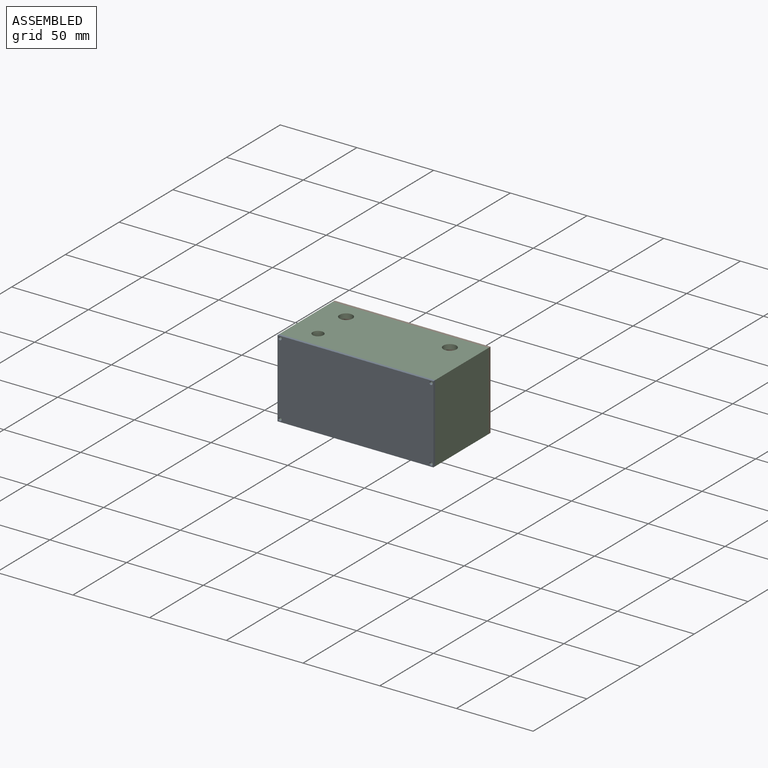
[diagram: assembled view]
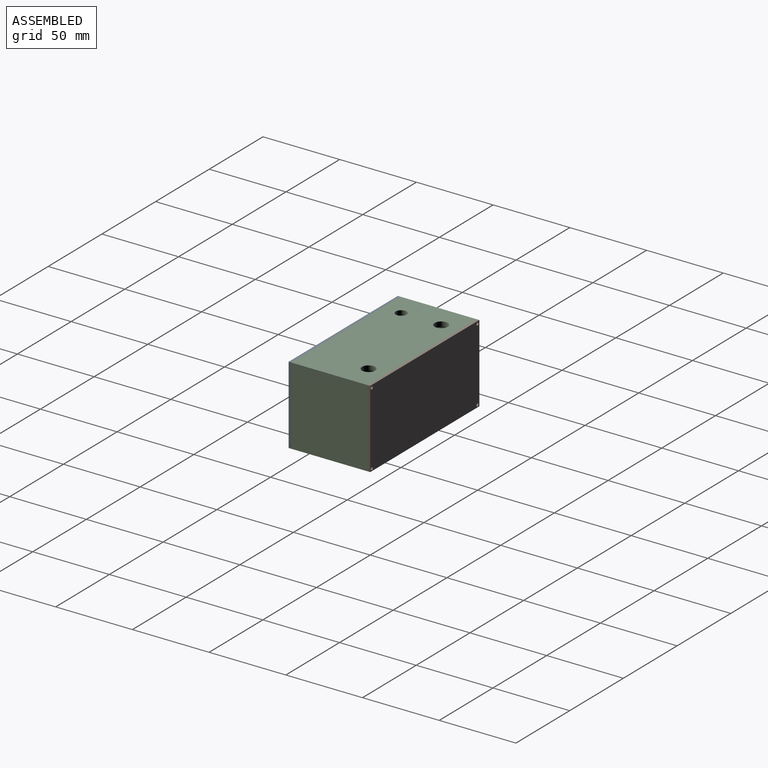
[diagram: assembled view, second angle]
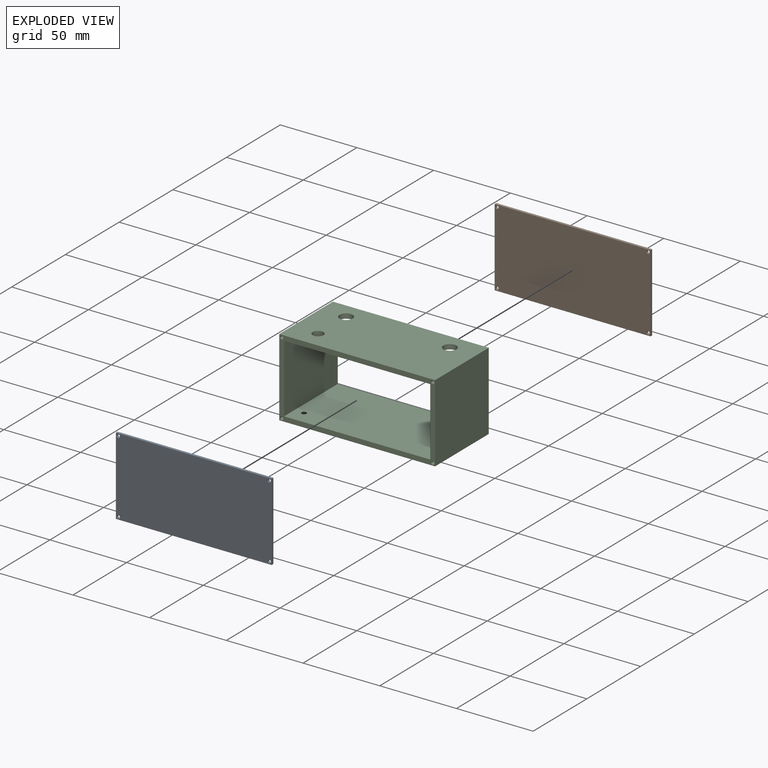
[diagram: exploded view]
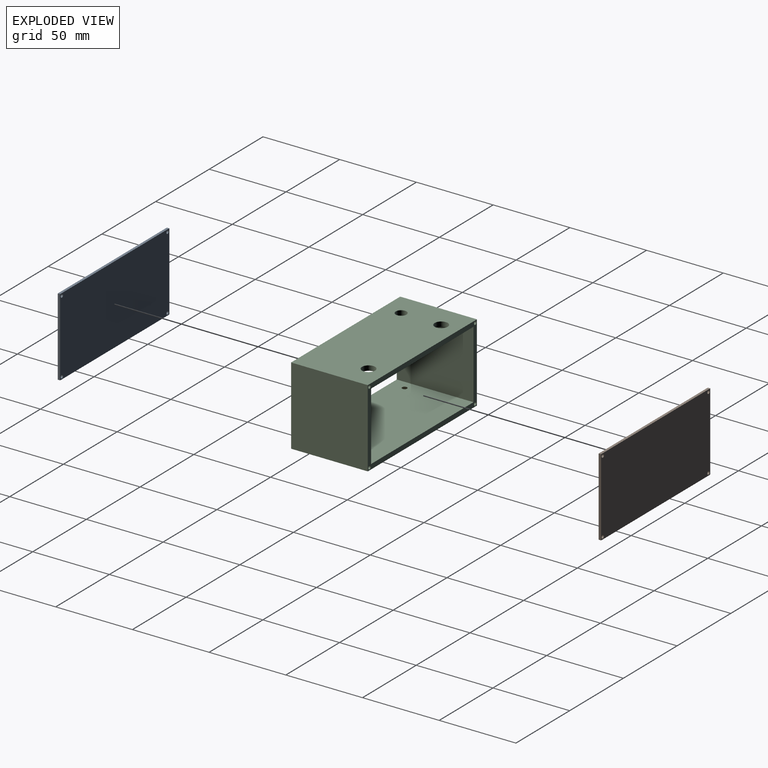
[diagram: exploded view, second angle]
ASSEMBLY  parts=3 mates=2
PART A: 10 faces, bbox 101.6x1.6x50.8 mm
  f0: plane 50.8x1.59mm, normal (-1,0,0), area 80.6mm2, adj f1,f3,f4,f5
  f1: plane 101.6x1.59mm, normal (0,0,-1), area 161.3mm2, adj f0,f2,f4,f5
  f2: plane 50.8x1.59mm, normal (1,0,0), area 80.6mm2, adj f1,f3,f4,f5
  f3: plane 101.6x1.59mm, normal (0,0,1), area 161.3mm2, adj f0,f2,f4,f5
  f4: plane 101.6x50.8mm, normal (0,-1,0), area 5147.3mm2, adj f0,f1,f2,f3,f6,f7,f8,f9
  f5: plane 101.6x50.8mm, normal (0,1,0), area 5147.3mm2, adj f0,f1,f2,f3,f6,f7,f8,f9
  f6: cylinder r=1.05mm len=2.11mm, axis (0,1,0), area 10.5mm2, adj f4,f5
  f7: cylinder r=1.05mm len=2.11mm, axis (0,1,0), area 10.5mm2, adj f4,f5
  f8: cylinder r=1.05mm len=2.11mm, axis (0,1,0), area 10.5mm2, adj f4,f5
  f9: cylinder r=1.05mm len=2.11mm, axis (0,1,0), area 10.5mm2, adj f4,f5
PART B: same geometry as A
PART C: 31 faces, bbox 101.6x50x50.8 mm
  f0: plane 101.6x50mm, normal (0,0,1), area 4927.7mm2, adj f1,f3,f4,f5,f10,f11,f12
  f1: plane 50.8x50mm, normal (-1,0,0), area 2540mm2, adj f0,f2,f4,f5
  f2: plane 101.6x50mm, normal (0,0,-1), area 4937.5mm2, adj f1,f3,f4,f5,f29,f30
  f3: plane 50.8x50mm, normal (1,0,0), area 2540mm2, adj f0,f2,f4,f5
  f4: plane 101.6x50.8mm, normal (0,-1,0), area 912.1mm2, adj f0,f1,f2,f3,f6,f7,f8,f9
  f5: plane 101.6x50.8mm, normal (0,1,0), area 912.1mm2, adj f0,f1,f2,f3,f6,f7,f8,f9
  f6: plane 95.26x50mm, normal (0,0,-1), area 4610.7mm2, adj f4,f5,f7,f9,f10,f11,f12
  f7: plane 50x44.46mm, normal (1,0,0), area 2223mm2, adj f4,f5,f6,f8
  f8: plane 95.26x50mm, normal (0,0,1), area 4747.1mm2, adj f4,f5,f7,f9,f29,f30
  f9: plane 50x44.46mm, normal (-1,0,0), area 2223mm2, adj f4,f5,f6,f8
  f10: cylinder r=3.51mm len=7.01mm, axis (0,0,1), area 69.8mm2, adj f0,f6
  f11: cylinder r=4.25mm len=8.51mm, axis (0,0,1), area 84.7mm2, adj f0,f6
  f12: cylinder r=4.25mm len=8.51mm, axis (0,0,1), area 84.7mm2, adj f0,f6
  f13: cone r=0mm half-angle=59deg, axis (0,-1,0), area 4.1mm2, adj f14
  f14: cylinder r=1.05mm len=9.53mm, axis (0,-1,0), area 63.1mm2, adj f4,f13
  f15: cone r=0mm half-angle=59deg, axis (0,-1,0), area 4.1mm2, adj f16
  f16: cylinder r=1.05mm len=9.53mm, axis (0,-1,0), area 63.1mm2, adj f4,f15
  f17: cone r=0mm half-angle=59deg, axis (0,-1,0), area 4.1mm2, adj f18
  f18: cylinder r=1.05mm len=9.53mm, axis (0,-1,0), area 63.1mm2, adj f4,f17
  f19: cone r=0mm half-angle=59deg, axis (0,-1,0), area 4.1mm2, adj f20
  f20: cylinder r=1.05mm len=9.53mm, axis (0,-1,0), area 63.1mm2, adj f4,f19
  f21: cone r=0mm half-angle=59deg, axis (0,1,0), area 4.1mm2, adj f22
  f22: cylinder r=1.05mm len=9.53mm, axis (0,1,0), area 63.1mm2, adj f5,f21
  f23: cone r=0mm half-angle=59deg, axis (0,1,0), area 4.1mm2, adj f24
  f24: cylinder r=1.05mm len=9.53mm, axis (0,1,0), area 63.1mm2, adj f5,f23
  f25: cone r=0mm half-angle=59deg, axis (0,1,0), area 4.1mm2, adj f26
  f26: cylinder r=1.05mm len=9.53mm, axis (0,1,0), area 63.1mm2, adj f5,f25
  f27: cone r=0mm half-angle=59deg, axis (0,1,0), area 4.1mm2, adj f28
  f28: cylinder r=1.05mm len=9.53mm, axis (0,1,0), area 63.1mm2, adj f5,f27
  f29: cone r=1.4mm half-angle=45deg, axis (0,0,-1), area 89.5mm2, adj f2,f8
  f30: cone r=1.4mm half-angle=45deg, axis (0,0,-1), area 89.5mm2, adj f2,f8
PLACE A t=(-84.05,-9.31,-60.27)mm
PLACE B t=(-84.05,42.28,-60.27)mm
PLACE C t=(-33,-9.31,-34.87)mm
MATE planar C.f4 <-> A.f5  axis (0,-1,0) through (-33.25,-9.31,-34.87)mm
MATE planar C.f5 <-> B.f4  axis (0,1,0) through (-33.25,40.69,-34.87)mm
